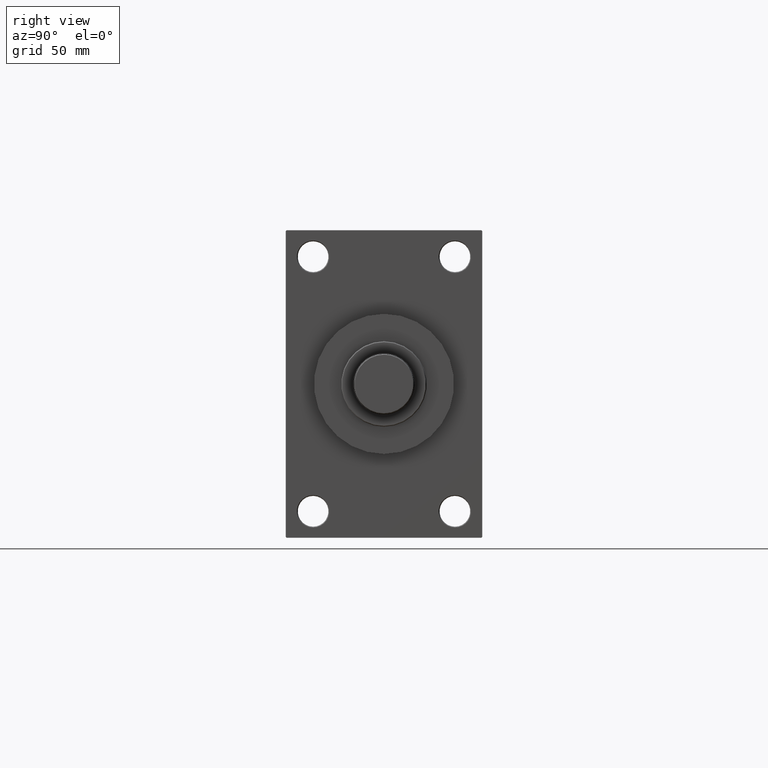
[diagram: clean part render]
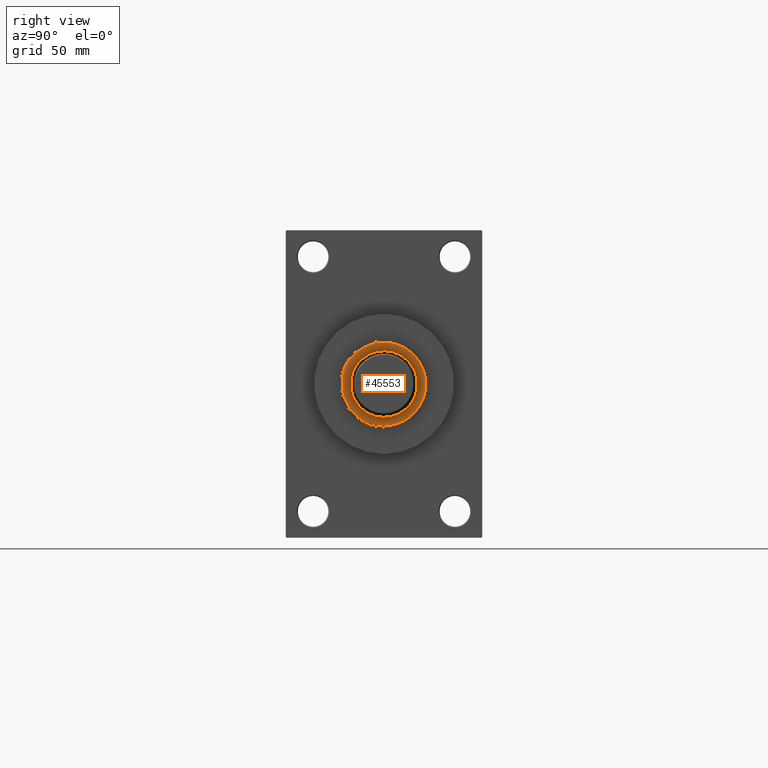
[diagram: same view with one face highlighted and labeled with its STEP entity id]
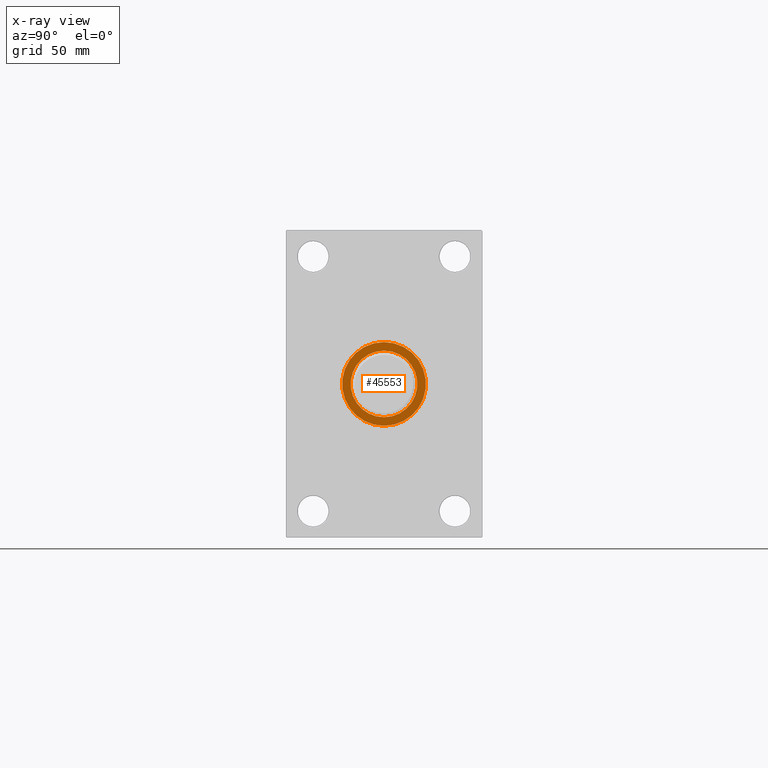
[diagram: x-ray of the same camera — body ghosted, the highlighted face saturated]
A machine part, right view. The second image highlights one B-rep face of the part: STEP entity #45553.
The next image is the same camera in x-ray: the body ghosted, the highlighted face saturated — about 0% of this face is hidden behind the body in this view.
In plain terms, the highlighted planar face has unit normal (1, 0, 0).
Its self-contained STEP definition (entity closure, byte-faithful):
#35 = DIRECTION ( 'NONE',  ( 1.000000000000000000, 0.000000000000000000, 0.000000000000000000 ) ) ;
#1053 = VERTEX_POINT ( 'NONE', #42018 ) ;
#1776 = ORIENTED_EDGE ( 'NONE', *, *, #43959, .F. ) ;
#2911 = EDGE_CURVE ( 'NONE', #36625, #2988, #40594, .T. ) ;
#2988 = VERTEX_POINT ( 'NONE', #43066 ) ;
#4647 = CARTESIAN_POINT ( 'NONE',  ( 0.000000000000000000, 0.000000000000000000, 52.25999999999999801 ) ) ;
#7437 = DIRECTION ( 'NONE',  ( 0.000000000000000000, 0.000000000000000000, 1.000000000000000000 ) ) ;
#7926 = AXIS2_PLACEMENT_3D ( 'NONE', #17254, #43302, #9731 ) ;
#9524 = AXIS2_PLACEMENT_3D ( 'NONE', #18784, #37522, #41174 ) ;
#9731 = DIRECTION ( 'NONE',  ( 1.000000000000000000, 0.000000000000000000, 0.000000000000000000 ) ) ;
#12207 = DIRECTION ( 'NONE',  ( 1.000000000000000000, 0.000000000000000000, -0.000000000000000000 ) ) ;
#13763 = AXIS2_PLACEMENT_3D ( 'NONE', #4647, #33130, #35 ) ;
#14845 = ORIENTED_EDGE ( 'NONE', *, *, #19100, .T. ) ;
#15383 = PLANE ( 'NONE',  #19516 ) ;
#15858 = CARTESIAN_POINT ( 'NONE',  ( 0.000000000000000000, 0.000000000000000000, 52.25999999999999801 ) ) ;
#16913 = CIRCLE ( 'NONE', #44116, 24.49999999999998224 ) ;
#17254 = CARTESIAN_POINT ( 'NONE',  ( 0.000000000000000000, 0.000000000000000000, 52.25999999999999801 ) ) ;
#17919 = DIRECTION ( 'NONE',  ( 1.000000000000000000, 0.000000000000000000, 0.000000000000000000 ) ) ;
#18562 = FACE_BOUND ( 'NONE', #28002, .T. ) ;
#18784 = CARTESIAN_POINT ( 'NONE',  ( 0.000000000000000000, 0.000000000000000000, 52.25999999999999801 ) ) ;
#19100 = EDGE_CURVE ( 'NONE', #30861, #1053, #16913, .T. ) ;
#19516 = AXIS2_PLACEMENT_3D ( 'NONE', #15858, #45547, #12207 ) ;
#20992 = EDGE_CURVE ( 'NONE', #1053, #30861, #40947, .T. ) ;
#21800 = EDGE_LOOP ( 'NONE', ( #14845, #39211 ) ) ;
#23845 = CARTESIAN_POINT ( 'NONE',  ( -19.50000000000000000, 2.388061258337338939E-15, 52.25999999999999801 ) ) ;
#24839 = ORIENTED_EDGE ( 'NONE', *, *, #2911, .F. ) ;
#26341 = FACE_OUTER_BOUND ( 'NONE', #21800, .T. ) ;
#28002 = EDGE_LOOP ( 'NONE', ( #1776, #24839 ) ) ;
#29180 = CARTESIAN_POINT ( 'NONE',  ( -24.49999999999998224, 0.000000000000000000, 52.25999999999999801 ) ) ;
#30861 = VERTEX_POINT ( 'NONE', #29180 ) ;
#33130 = DIRECTION ( 'NONE',  ( 0.000000000000000000, 0.000000000000000000, 1.000000000000000000 ) ) ;
#36625 = VERTEX_POINT ( 'NONE', #23845 ) ;
#37522 = DIRECTION ( 'NONE',  ( 0.000000000000000000, 0.000000000000000000, 1.000000000000000000 ) ) ;
#39211 = ORIENTED_EDGE ( 'NONE', *, *, #20992, .T. ) ;
#40313 = CARTESIAN_POINT ( 'NONE',  ( 0.000000000000000000, 0.000000000000000000, 52.25999999999999801 ) ) ;
#40594 = CIRCLE ( 'NONE', #7926, 19.50000000000000000 ) ;
#40947 = CIRCLE ( 'NONE', #13763, 24.49999999999998224 ) ;
#41174 = DIRECTION ( 'NONE',  ( 1.000000000000000000, 0.000000000000000000, 0.000000000000000000 ) ) ;
#42018 = CARTESIAN_POINT ( 'NONE',  ( 24.49999999999998224, 3.031000827889698072E-15, 52.25999999999999801 ) ) ;
#43066 = CARTESIAN_POINT ( 'NONE',  ( 19.50000000000000000, 0.000000000000000000, 52.25999999999999801 ) ) ;
#43302 = DIRECTION ( 'NONE',  ( 0.000000000000000000, 0.000000000000000000, 1.000000000000000000 ) ) ;
#43959 = EDGE_CURVE ( 'NONE', #2988, #36625, #47605, .T. ) ;
#44116 = AXIS2_PLACEMENT_3D ( 'NONE', #40313, #7437, #17919 ) ;
#45547 = DIRECTION ( 'NONE',  ( 0.000000000000000000, 0.000000000000000000, 1.000000000000000000 ) ) ;
#45553 = ADVANCED_FACE ( 'NONE', ( #18562, #26341 ), #15383, .T. ) ;
#47605 = CIRCLE ( 'NONE', #9524, 19.50000000000000000 ) ;